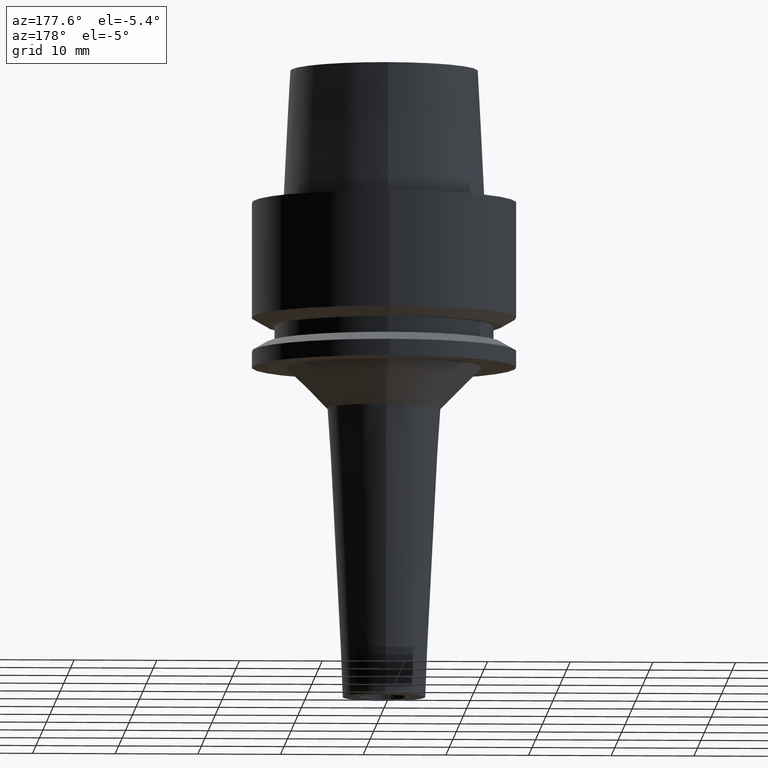
[diagram: clean part render]
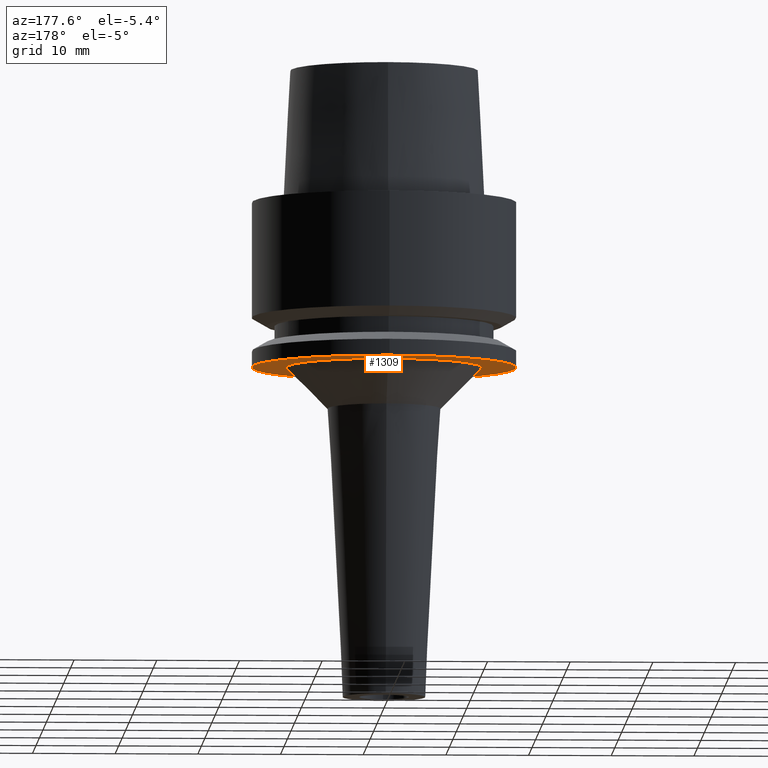
[diagram: same view with one face highlighted and labeled with its STEP entity id]
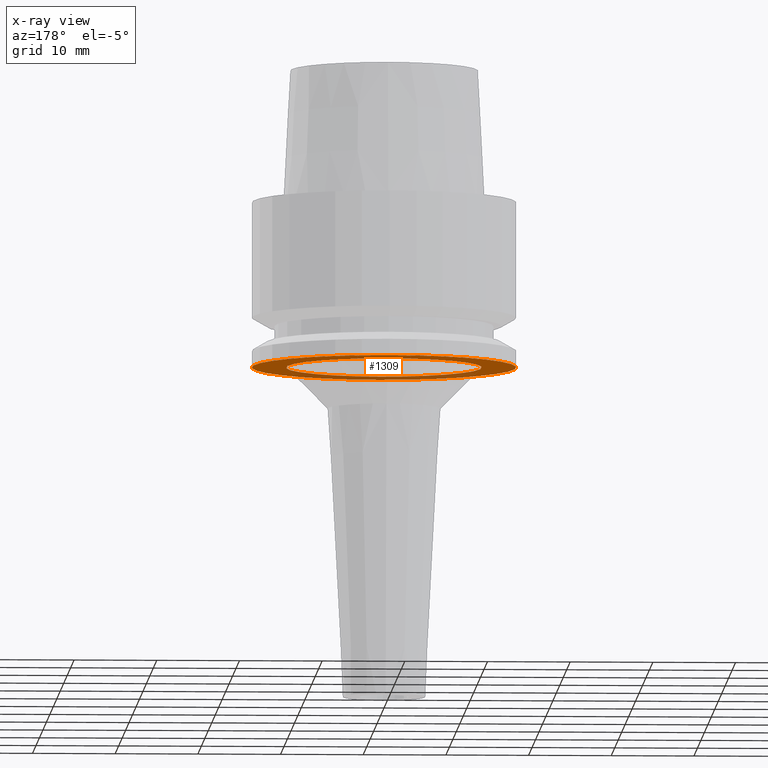
[diagram: x-ray of the same camera — body ghosted, the highlighted face saturated]
A machine part, auxiliary view. The second image highlights one B-rep face of the part: STEP entity #1309.
The next image is the same camera in x-ray: the body ghosted, the highlighted face saturated — about 28% of this face is hidden behind the body in this view.
In plain terms, the highlighted planar face has unit normal (0, 0, -1).
Its self-contained STEP definition (entity closure, byte-faithful):
#490=CARTESIAN_POINT('',(0.E0,1.467126865379E-14,-2.E1));
#491=DIRECTION('',(0.E0,0.E0,1.E0));
#492=DIRECTION('',(0.E0,-1.E0,0.E0));
#493=AXIS2_PLACEMENT_3D('',#490,#491,#492);
#498=CARTESIAN_POINT('',(0.E0,1.467126865379E-14,-2.E1));
#499=DIRECTION('',(0.E0,0.E0,1.E0));
#500=DIRECTION('',(0.E0,1.E0,0.E0));
#501=AXIS2_PLACEMENT_3D('',#498,#499,#500);
#506=CARTESIAN_POINT('',(0.E0,0.E0,-2.E1));
#507=DIRECTION('',(0.E0,0.E0,-1.E0));
#508=DIRECTION('',(0.E0,-1.E0,0.E0));
#509=AXIS2_PLACEMENT_3D('',#506,#507,#508);
#514=CARTESIAN_POINT('',(0.E0,0.E0,-2.E1));
#515=DIRECTION('',(0.E0,0.E0,-1.E0));
#516=DIRECTION('',(0.E0,1.E0,0.E0));
#517=AXIS2_PLACEMENT_3D('',#514,#515,#516);
#796=CARTESIAN_POINT('',(0.E0,1.183427227491E1,-2.E1));
#797=VERTEX_POINT('',#796);
#798=CARTESIAN_POINT('',(0.E0,-1.183427227491E1,-2.E1));
#799=VERTEX_POINT('',#798);
#800=CARTESIAN_POINT('',(0.E0,-1.6E1,-2.E1));
#801=CARTESIAN_POINT('',(0.E0,1.6E1,-2.E1));
#802=VERTEX_POINT('',#800);
#803=VERTEX_POINT('',#801);
#1294=CARTESIAN_POINT('',(0.E0,0.E0,-2.E1));
#1295=DIRECTION('',(0.E0,0.E0,-1.E0));
#1296=DIRECTION('',(0.E0,-1.E0,0.E0));
#1297=AXIS2_PLACEMENT_3D('',#1294,#1295,#1296);
#1298=PLANE('',#1297);
#1300=ORIENTED_EDGE('',*,*,#1299,.T.);
#1302=ORIENTED_EDGE('',*,*,#1301,.T.);
#1303=EDGE_LOOP('',(#1300,#1302));
#1304=FACE_OUTER_BOUND('',#1303,.F.);
#1305=ORIENTED_EDGE('',*,*,#1273,.T.);
#1306=ORIENTED_EDGE('',*,*,#1289,.T.);
#1307=EDGE_LOOP('',(#1305,#1306));
#1308=FACE_BOUND('',#1307,.F.);
#494=CIRCLE('',#493,1.6E1);
#502=CIRCLE('',#501,1.6E1);
#510=CIRCLE('',#509,1.183427227491E1);
#518=CIRCLE('',#517,1.183427227491E1);
#1273=EDGE_CURVE('',#799,#797,#510,.T.);
#1289=EDGE_CURVE('',#797,#799,#518,.T.);
#1299=EDGE_CURVE('',#802,#803,#494,.T.);
#1301=EDGE_CURVE('',#803,#802,#502,.T.);
#1309=ADVANCED_FACE('',(#1304,#1308),#1298,.T.);